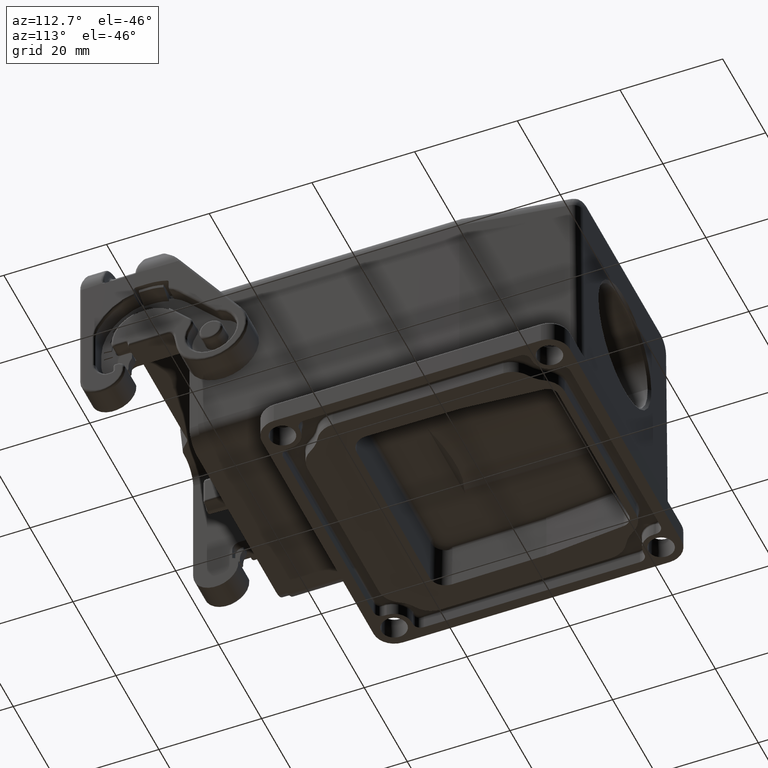
[diagram: clean part render]
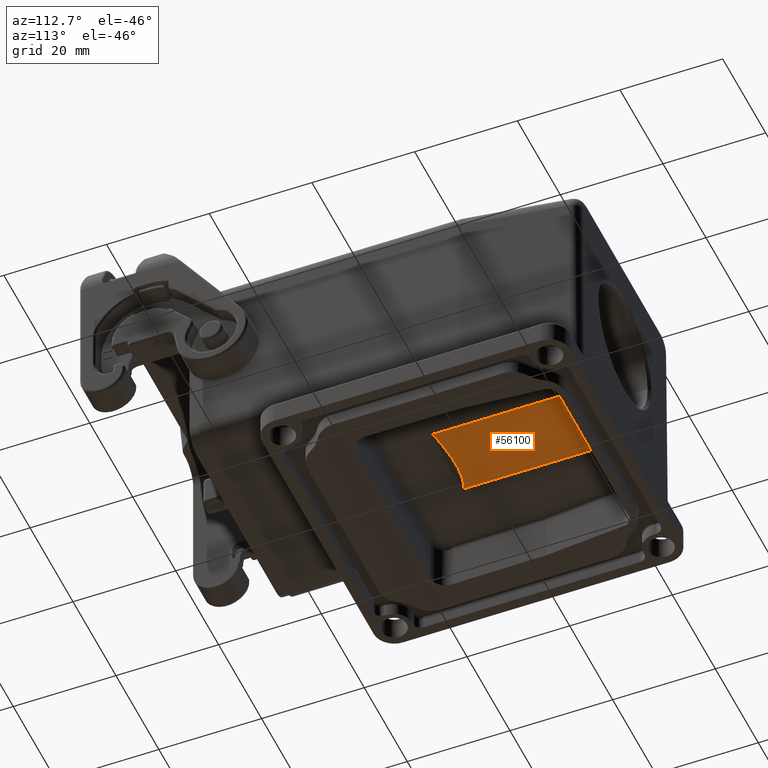
[diagram: same view with one face highlighted and labeled with its STEP entity id]
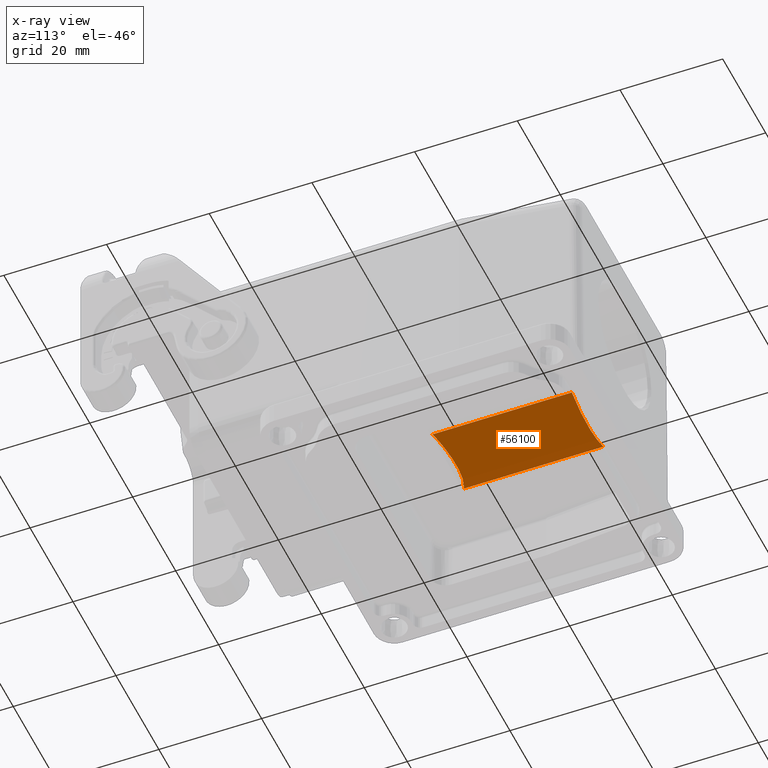
[diagram: x-ray of the same camera — body ghosted, the highlighted face saturated]
A machine part, auxiliary view. The second image highlights one B-rep face of the part: STEP entity #56100.
The next image is the same camera in x-ray: the body ghosted, the highlighted face saturated — about 0% of this face is hidden behind the body in this view.
In plain terms, the highlighted cylindrical surface (partial cylindrical patch) has radius 18 mm, axis along (0, -1, 0).
Its self-contained STEP definition (entity closure, byte-faithful):
#12670=CARTESIAN_POINT('',(67.3968228677534,48.612994680275,
66.9652173913045));
#12680=VERTEX_POINT('',#12670);
#12730=CARTESIAN_POINT('',(54.9415657956712,48.612994680275,
66.9652173913045));
#12740=DIRECTION('',(1.,5.55111512312578E-17,5.55111512312578E-17));
#12750=VECTOR('',#12740,1.);
#12760=LINE('',#12730,#12750);
#12770=CARTESIAN_POINT('',(40.2827824521055,48.6129947076444,
66.9652174525738));
#12780=VERTEX_POINT('',#12770);
#12790=EDGE_CURVE('',#12780,#12680,#12760,.T.);
#15470=CARTESIAN_POINT('',(67.3968228677534,63.2960353197223,
66.9652173913045));
#15480=VERTEX_POINT('',#15470);
#15510=CARTESIAN_POINT('',(83.831605476449,55.9545149999987,
83.4000000000002));
#15520=DIRECTION('',(0.707106781186548,3.92523114670944E-17,
-0.707106781186547));
#15530=DIRECTION('',(0.707106781186547,3.92523114670943E-17,
0.707106781186548));
#15540=AXIS2_PLACEMENT_3D('',#15510,#15520,#15530);
#15550=ELLIPSE('',#15540,25.4558441227157,18.);
#15560=EDGE_CURVE('',#12680,#15480,#15550,.T.);
#32510=CARTESIAN_POINT('',(40.2827824515695,63.2960353197223,
66.9652173913045));
#32520=VERTEX_POINT('',#32510);
#39180=CARTESIAN_POINT('',(40.2827824741136,63.2960380445104,
66.965218647034));
#39190=CARTESIAN_POINT('',(40.2804306855855,63.0102963218795,
66.8375760290522));
#39200=CARTESIAN_POINT('',(40.2782170673841,62.7213311744323,
66.7174325641673));
#39210=CARTESIAN_POINT('',(40.2757290421122,62.37106357105,
66.5823957377163));
#39220=CARTESIAN_POINT('',(40.27531998281,62.31256880625,
66.5601941666076));
#39230=CARTESIAN_POINT('',(40.274513118628,62.1953500838578,
66.516401854791));
#39240=CARTESIAN_POINT('',(40.2741153137482,62.1366261262655,
66.494811114083));
#39250=CARTESIAN_POINT('',(40.2733298940304,62.0187890858202,
66.4521826941403));
#39260=CARTESIAN_POINT('',(40.2729423108373,61.9596753738419,
66.4311467324183));
#39270=CARTESIAN_POINT('',(40.2724044033057,61.8762559345758,
66.4019519622466));
#39280=CARTESIAN_POINT('',(40.2722493365846,61.8520422024062,
66.3935357624034));
#39290=CARTESIAN_POINT('',(40.2712933085316,61.7017232963854,
66.3416476261688));
#39300=CARTESIAN_POINT('',(40.2697409923717,61.4485603910674,
66.2573961315184));
#39310=CARTESIAN_POINT('',(40.2682923427771,61.1935119107513,
66.178771108656));
#39320=CARTESIAN_POINT('',(40.2660634124178,60.7850000850725,
66.0577965809849));
#39330=CARTESIAN_POINT('',(40.2646580542355,60.5023066338454,
65.981521186553));
#39340=CARTESIAN_POINT('',(40.2604868015325,59.5736265983725,
65.7551276954239));
#39350=CARTESIAN_POINT('',(40.2582544133491,58.9219798102643,
65.6339654953844));
#39360=CARTESIAN_POINT('',(40.2559062781604,57.9376604796352,
65.506521161305));
#39370=CARTESIAN_POINT('',(40.255290307612,57.6084125113477,
65.4730895442752));
#39380=CARTESIAN_POINT('',(40.254393454882,56.9483846048428,
65.4244131309704));
#39390=CARTESIAN_POINT('',(40.2541125727005,56.6176046666254,
65.4091683346954));
#39400=CARTESIAN_POINT('',(40.2539893966088,56.2551194390882,
65.4024829892125));
#39410=CARTESIAN_POINT('',(40.2539802607446,56.2238011038917,
65.4019871429189));
#39420=CARTESIAN_POINT('',(40.2539650008376,56.1611580863864,
65.4011589160387));
#39430=CARTESIAN_POINT('',(40.2539588767949,56.1298334040778,
65.400826535452));
#39440=CARTESIAN_POINT('',(40.2539515581921,56.0801796681652,
65.4004293204974));
#39450=CARTESIAN_POINT('',(40.2539493726122,56.0618524932436,
65.400310698805));
#39460=CARTESIAN_POINT('',(40.2539440290105,56.0032025737504,
65.4000206764232));
#39470=CARTESIAN_POINT('',(40.2539428516817,55.9628801853906,
65.3999567788974));
#39480=CARTESIAN_POINT('',(40.2539443387551,55.9174208131137,
65.4000374885285));
#39490=CARTESIAN_POINT('',(40.2539445473206,55.9122836850899,
65.4000488082256));
#39500=CARTESIAN_POINT('',(40.2539450454832,55.9020094540112,
65.4000758457797));
#39510=CARTESIAN_POINT('',(40.2539453350801,55.8968723549861,
65.4000915636461));
#39520=CARTESIAN_POINT('',(40.2539482563312,55.8514133424769,
65.400250114128));
#39530=CARTESIAN_POINT('',(40.2539533438007,55.8110919913966,
65.4005262338491));
#39540=CARTESIAN_POINT('',(40.2539627381642,55.7611454004999,
65.401036110177));
#39550=CARTESIAN_POINT('',(40.2539731402372,55.7098711104959,
65.4016006817677));
#39560=CARTESIAN_POINT('',(40.2539875791234,55.6585995571589,
65.4023843576806));
#39570=CARTESIAN_POINT('',(40.2540147288711,55.5800377736821,
65.4038579057742));
#39580=CARTESIAN_POINT('',(40.2540330132667,55.5345885376941,
65.4048502732635));
#39590=CARTESIAN_POINT('',(40.2540544697774,55.4891434889887,
65.4060148159479));
#39600=CARTESIAN_POINT('',(40.2540667178675,55.4639029642515,
65.4066795773695));
#39610=CARTESIAN_POINT('',(40.2540752543538,55.4471954877268,
65.4071428926038));
#39620=CARTESIAN_POINT('',(40.2541001585853,55.4007860253535,
65.4084945623109));
#39630=CARTESIAN_POINT('',(40.2541174521998,55.3710867259057,
65.4094331680582));
#39640=CARTESIAN_POINT('',(40.2541547467153,55.3116965274804,
65.411457316716));
#39650=CARTESIAN_POINT('',(40.2541747476162,55.2820056285028,
65.4125428596264));
#39660=CARTESIAN_POINT('',(40.2544235443514,54.9361258270939,
65.4260462279106));
#39670=CARTESIAN_POINT('',(40.254804480862,54.6204396767336,
65.4467214429281));
#39680=CARTESIAN_POINT('',(40.2558718099332,53.9907362849564,
65.5046504085969));
#39690=CARTESIAN_POINT('',(40.2565582024939,53.6767190435395,
65.5419041592482));
#39700=CARTESIAN_POINT('',(40.2582349123436,53.0510079323532,
65.6329070841506));
#39710=CARTESIAN_POINT('',(40.2592252296325,52.7393140625838,
65.6866562584017));
#39720=CARTESIAN_POINT('',(40.2615082576169,52.1189041573965,
65.8105669184697));
#39730=CARTESIAN_POINT('',(40.2628009683123,51.8101881219787,
65.8807284042866));
#39740=CARTESIAN_POINT('',(40.2654907373754,51.2381792889943,
66.0267148145799));
#39750=CARTESIAN_POINT('',(40.2682049599594,50.7114235860285,
66.1740284323927));
#39760=CARTESIAN_POINT('',(40.2713553935474,50.1923838586628,
66.3450172718054));
#39770=CARTESIAN_POINT('',(40.2734029574044,49.8792055014878,
66.4561481868812));
#39780=CARTESIAN_POINT('',(40.2737727382293,49.8235200211846,
66.4762179304026));
#39790=CARTESIAN_POINT('',(40.2745234909273,49.7121883572768,
66.5169648082301));
#39800=CARTESIAN_POINT('',(40.274904492689,49.6565427780051,
66.5376435647295));
#39810=CARTESIAN_POINT('',(40.2756766080425,49.545460735669,
66.5795498942868));
#39820=CARTESIAN_POINT('',(40.2760677216343,49.4900242726046,
66.6007774673447));
#39830=CARTESIAN_POINT('',(40.2784446571463,49.1580441070024,
66.7297849303445));
#39840=CARTESIAN_POINT('',(40.2805514690701,48.8840586009752,
66.8441315165015));
#39850=CARTESIAN_POINT('',(40.2827824746503,48.6129919685005,
66.9652186761662));
#39860=(BOUNDED_CURVE() B_SPLINE_CURVE(3,(#39180,#39190,#39200,#39210,
#39220,#39230,#39240,#39250,#39260,#39270,#39280,#39290,#39300,#39310,
#39320,#39330,#39340,#39350,#39360,#39370,#39380,#39390,#39400,#39410,
#39420,#39430,#39440,#39450,#39460,#39470,#39480,#39490,#39500,#39510,
#39520,#39530,#39540,#39550,#39560,#39570,#39580,#39590,#39600,#39610,
#39620,#39630,#39640,#39650,#39660,#39670,#39680,#39690,#39700,#39710,
#39720,#39730,#39740,#39750,#39760,#39770,#39780,#39790,#39800,#39810,
#39820,#39830,#39840,#39850),.UNSPECIFIED.,.F.,.F.) 
B_SPLINE_CURVE_WITH_KNOTS((4,2,2,2,2,2,1,2,2,2,2,2,2,2,2,2,2,2,2,1,2,1,2
,2,2,2,2,2,2,2,1,2,2,2,2,4),(0.,0.96470881214297,1.157649958053,
1.35059110396304,1.54407239037786,1.62311681921081,2.03441049505539,
2.44570417089997,3.34733595142208,5.38778657577559,6.40801188795234,
7.42823720012909,7.52470777308411,7.62117834603912,7.67761236130979,
7.80176730440538,7.81758488058668,7.83340824461684,7.95760861755815,
7.98726168297661,8.11555327645685,8.22929567840537,8.25558587244176,
8.30707224860302,8.39861362532388,8.49015500204474,9.46517216435559,
10.4401893266664,11.4152064889773,12.3902236512881,13.2324715091917,
14.0747193670953,14.2572617354589,14.4403444889007,14.6234272423424,
15.5388440929974),.UNSPECIFIED.) CURVE() GEOMETRIC_REPRESENTATION_ITEM()
 RATIONAL_B_SPLINE_CURVE((0.999999999999853,0.999999999999853,
0.999999999999853,0.999999999999853,0.999999999999853,0.999999999999853,
0.999999999999853,0.999999999999853,0.999999999999853,0.999999999999853,
0.999999999999853,0.999999999999853,0.999999999999853,0.999999999999853,
0.999999999999853,0.999999999999854,0.999999999999854,0.999999999999854,
0.999999999999854,0.999999999999854,0.999999999999854,0.999999999999854,
0.999999999999854,0.999999999999854,0.999999999999854,0.999999999999854,
0.999999999999854,0.999999999999854,0.999999999999854,0.999999999999854,
0.999999999999854,0.999999999999854,0.999999999999854,0.999999999999854,
0.999999999999854,0.999999999999854,0.999999999999854,0.999999999999854,
0.999999999999854,0.999999999999854,0.999999999999854,0.999999999999854,
0.999999999999854,0.999999999999854,0.999999999999854,0.999999999999854,
0.999999999999854,0.999999999999854,0.999999999999854,0.999999999999854,
0.999999999999853,0.999999999999853,0.999999999999853,0.999999999999853,
0.999999999999853,0.999999999999854,0.999999999999854,0.999999999999853,
0.999999999999853,0.999999999999853,0.999999999999853,0.999999999999853,
0.999999999999853,0.999999999999853,0.999999999999853,0.999999999999853,
0.999999999999853,0.999999999999853)) REPRESENTATION_ITEM(''));
#39870=EDGE_CURVE('',#32520,#12780,#39860,.T.);
#51930=CARTESIAN_POINT('',(54.9415657956712,63.2960353197223,
66.9652173913045));
#51940=DIRECTION('',(1.,5.55111512312578E-17,5.55111512312578E-17));
#51950=VECTOR('',#51940,1.);
#51960=LINE('',#51930,#51950);
#51970=EDGE_CURVE('',#32520,#15480,#51960,.T.);
#55990=CARTESIAN_POINT('',(54.9415657956712,55.9545149999987,
83.4000000000002));
#56000=DIRECTION('',(1.,5.55111512312578E-17,5.55111512312578E-17));
#56010=DIRECTION('',(-5.55111512312578E-17,1.,-3.08148791101958E-33));
#56020=AXIS2_PLACEMENT_3D('',#55990,#56000,#56010);
#56030=CYLINDRICAL_SURFACE('',#56020,18.);
#56040=ORIENTED_EDGE('',*,*,#39870,.F.);
#56050=ORIENTED_EDGE('',*,*,#12790,.F.);
#56060=ORIENTED_EDGE('',*,*,#15560,.F.);
#56070=ORIENTED_EDGE('',*,*,#51970,.T.);
#56080=EDGE_LOOP('',(#56070,#56060,#56050,#56040));
#56090=FACE_OUTER_BOUND('',#56080,.T.);
#56100=ADVANCED_FACE('',(#56090),#56030,.T.);